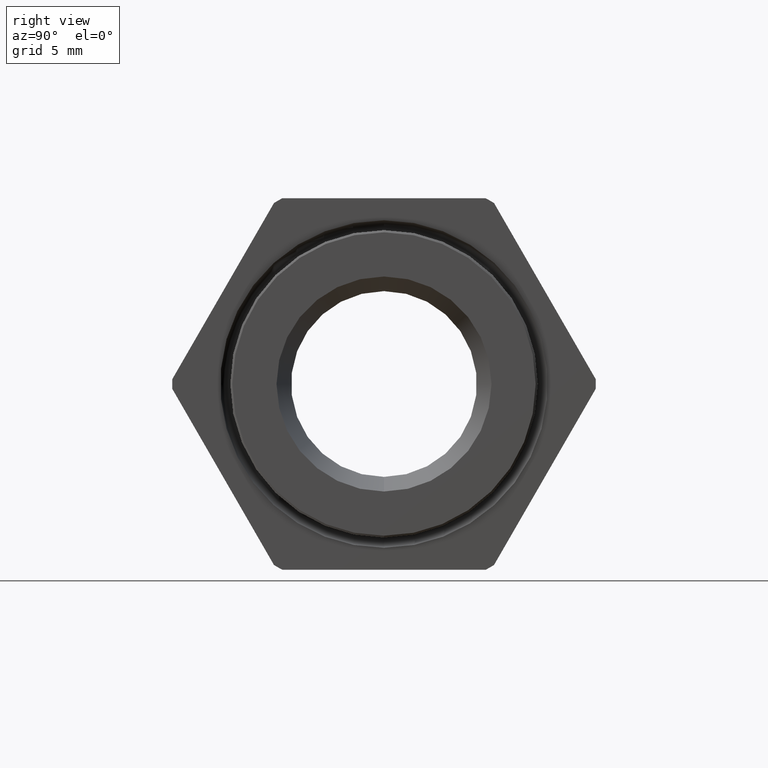
[diagram: clean part render]
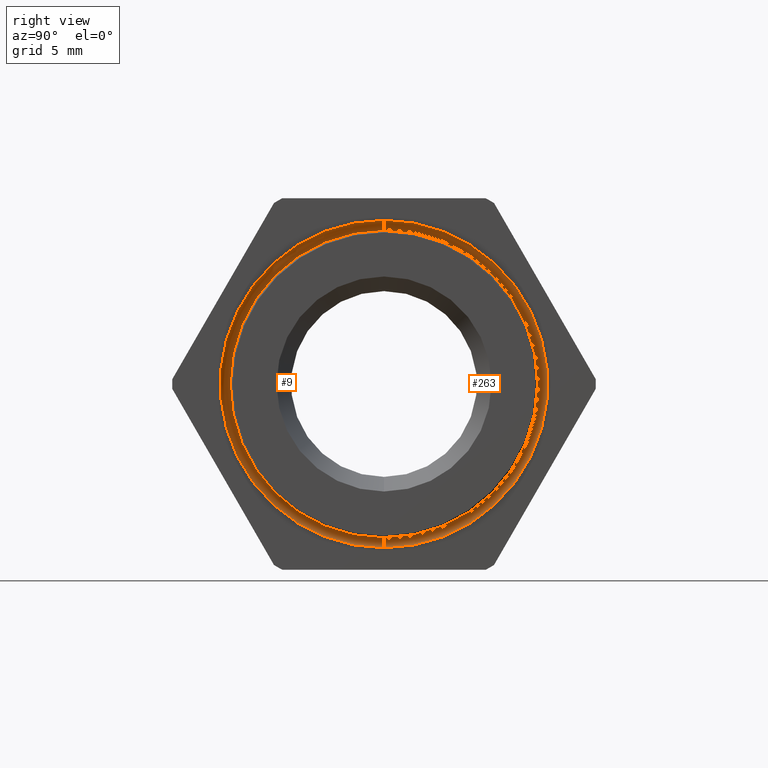
[diagram: same view with one multi-face feature highlighted, each face labeled with its STEP entity id]
A machine part, right view. The highlighted faces form ONE feature: a constant-radius fillet chain: 2 tangent blend faces with common blend radius 0.508 mm. The faces share edges in the B-rep.
Their STEP definitions:
[1] entity #9 (Torus):
#2 = ORIENTED_EDGE ( 'NONE', *, *, #11, .T. ) ;
#3 = EDGE_LOOP ( 'NONE', ( #2, #31, #29, #27 ) ) ;
#5 = VERTEX_POINT ( 'NONE', #1126 ) ;
#9 = ADVANCED_FACE ( 'NONE', ( #1109 ), #1108, .F. ) ;
#11 = EDGE_CURVE ( 'NONE', #12, #5, #1162, .T. ) ;
#12 = VERTEX_POINT ( 'NONE', #1157 ) ;
#18 = VERTEX_POINT ( 'NONE', #1150 ) ;
#20 = EDGE_CURVE ( 'NONE', #265, #18, #1149, .T. ) ;
#27 = ORIENTED_EDGE ( 'NONE', *, *, #28, .F. ) ;
#28 = EDGE_CURVE ( 'NONE', #12, #265, #1196, .T. ) ;
#29 = ORIENTED_EDGE ( 'NONE', *, *, #20, .F. ) ;
#31 = ORIENTED_EDGE ( 'NONE', *, *, #32, .T. ) ;
#32 = EDGE_CURVE ( 'NONE', #5, #18, #1187, .T. ) ;
#265 = VERTEX_POINT ( 'NONE', #1450 ) ;
#1103 = DIRECTION ( 'NONE',  ( 0.0000000000000000000, 0.0000000000000000000, 1.000000000000000000 ) ) ;
#1104 = DIRECTION ( 'NONE',  ( -1.000000000000000000, 0.0000000000000000000, 0.0000000000000000000 ) ) ;
#1105 = CARTESIAN_POINT ( 'NONE',  ( 0.3555097499999999600, 0.0000000000000000000, 0.0000000000000000000 ) ) ;
#1106 = AXIS2_PLACEMENT_3D ( 'NONE', #1105, #1104, #1103 ) ;
#1108 = TOROIDAL_SURFACE ( 'NONE', #1106, 0.3950000000000000200, 0.01999999999999999700 ) ;
#1109 = FACE_OUTER_BOUND ( 'NONE', #3, .T. ) ;
#1126 = CARTESIAN_POINT ( 'NONE',  ( 0.3555097499999999600, 4.592425496802574200E-017, -0.3750000000000000600 ) ) ;
#1145 = DIRECTION ( 'NONE',  ( 0.0000000000000000000, 0.0000000000000000000, -1.000000000000000000 ) ) ;
#1146 = DIRECTION ( 'NONE',  ( 0.0000000000000000000, -1.000000000000000000, 0.0000000000000000000 ) ) ;
#1147 = CARTESIAN_POINT ( 'NONE',  ( 0.3555097499999999600, 0.0000000000000000000, 0.3950000000000000200 ) ) ;
#1148 = AXIS2_PLACEMENT_3D ( 'NONE', #1147, #1146, #1145 ) ;
#1149 = CIRCLE ( 'NONE', #1148, 0.01999999999999999000 ) ;
#1150 = CARTESIAN_POINT ( 'NONE',  ( 0.3555097499999999600, 0.0000000000000000000, 0.3750000000000000600 ) ) ;
#1157 = CARTESIAN_POINT ( 'NONE',  ( 0.3499999999999999800, 5.072806590078969600E-017, -0.4142260930752324500 ) ) ;
#1158 = DIRECTION ( 'NONE',  ( 0.0000000000000000000, -1.224646799147354900E-016, 1.000000000000000000 ) ) ;
#1159 = DIRECTION ( 'NONE',  ( 0.0000000000000000000, 1.000000000000000000, 1.224646799147353200E-016 ) ) ;
#1160 = CARTESIAN_POINT ( 'NONE',  ( 0.3555097499999999600, 4.837354856632045600E-017, -0.3950000000000000200 ) ) ;
#1161 = AXIS2_PLACEMENT_3D ( 'NONE', #1160, #1159, #1158 ) ;
#1162 = CIRCLE ( 'NONE', #1161, 0.01999999999999999000 ) ;
#1183 = DIRECTION ( 'NONE',  ( 0.0000000000000000000, 0.0000000000000000000, 1.000000000000000000 ) ) ;
#1184 = DIRECTION ( 'NONE',  ( -1.000000000000000000, 0.0000000000000000000, 0.0000000000000000000 ) ) ;
#1185 = CARTESIAN_POINT ( 'NONE',  ( 0.3555097499999999600, 0.0000000000000000000, 0.0000000000000000000 ) ) ;
#1186 = AXIS2_PLACEMENT_3D ( 'NONE', #1185, #1184, #1183 ) ;
#1187 = CIRCLE ( 'NONE', #1186, 0.3750000000000000600 ) ;
#1192 = DIRECTION ( 'NONE',  ( 0.0000000000000000000, 0.0000000000000000000, 1.000000000000000000 ) ) ;
#1193 = DIRECTION ( 'NONE',  ( -1.000000000000000000, 0.0000000000000000000, 0.0000000000000000000 ) ) ;
#1194 = CARTESIAN_POINT ( 'NONE',  ( 0.3499999999999999800, 0.0000000000000000000, 0.0000000000000000000 ) ) ;
#1195 = AXIS2_PLACEMENT_3D ( 'NONE', #1194, #1193, #1192 ) ;
#1196 = CIRCLE ( 'NONE', #1195, 0.4142260930752324500 ) ;
#1450 = CARTESIAN_POINT ( 'NONE',  ( 0.3499999999999999800, 0.0000000000000000000, 0.4142260930752324500 ) ) ;
[2] entity #263 (Torus):
#4 = ORIENTED_EDGE ( 'NONE', *, *, #20, .T. ) ;
#5 = VERTEX_POINT ( 'NONE', #1126 ) ;
#10 = EDGE_CURVE ( 'NONE', #265, #12, #1102, .T. ) ;
#11 = EDGE_CURVE ( 'NONE', #12, #5, #1162, .T. ) ;
#12 = VERTEX_POINT ( 'NONE', #1157 ) ;
#13 = ORIENTED_EDGE ( 'NONE', *, *, #10, .F. ) ;
#14 = ORIENTED_EDGE ( 'NONE', *, *, #11, .F. ) ;
#17 = EDGE_CURVE ( 'NONE', #18, #5, #1155, .T. ) ;
#18 = VERTEX_POINT ( 'NONE', #1150 ) ;
#19 = ORIENTED_EDGE ( 'NONE', *, *, #17, .T. ) ;
#20 = EDGE_CURVE ( 'NONE', #265, #18, #1149, .T. ) ;
#263 = ADVANCED_FACE ( 'NONE', ( #1456 ), #1455, .F. ) ;
#264 = EDGE_LOOP ( 'NONE', ( #4, #19, #14, #13 ) ) ;
#265 = VERTEX_POINT ( 'NONE', #1450 ) ;
#1101 = AXIS2_PLACEMENT_3D ( 'NONE', #1107, #1164, #1163 ) ;
#1102 = CIRCLE ( 'NONE', #1101, 0.4142260930752324500 ) ;
#1107 = CARTESIAN_POINT ( 'NONE',  ( 0.3499999999999999800, 0.0000000000000000000, 0.0000000000000000000 ) ) ;
#1126 = CARTESIAN_POINT ( 'NONE',  ( 0.3555097499999999600, 4.592425496802574200E-017, -0.3750000000000000600 ) ) ;
#1145 = DIRECTION ( 'NONE',  ( 0.0000000000000000000, 0.0000000000000000000, -1.000000000000000000 ) ) ;
#1146 = DIRECTION ( 'NONE',  ( 0.0000000000000000000, -1.000000000000000000, 0.0000000000000000000 ) ) ;
#1147 = CARTESIAN_POINT ( 'NONE',  ( 0.3555097499999999600, 0.0000000000000000000, 0.3950000000000000200 ) ) ;
#1148 = AXIS2_PLACEMENT_3D ( 'NONE', #1147, #1146, #1145 ) ;
#1149 = CIRCLE ( 'NONE', #1148, 0.01999999999999999000 ) ;
#1150 = CARTESIAN_POINT ( 'NONE',  ( 0.3555097499999999600, 0.0000000000000000000, 0.3750000000000000600 ) ) ;
#1151 = DIRECTION ( 'NONE',  ( 0.0000000000000000000, 0.0000000000000000000, 1.000000000000000000 ) ) ;
#1152 = DIRECTION ( 'NONE',  ( -1.000000000000000000, 0.0000000000000000000, 0.0000000000000000000 ) ) ;
#1153 = CARTESIAN_POINT ( 'NONE',  ( 0.3555097499999999600, 0.0000000000000000000, 0.0000000000000000000 ) ) ;
#1154 = AXIS2_PLACEMENT_3D ( 'NONE', #1153, #1152, #1151 ) ;
#1155 = CIRCLE ( 'NONE', #1154, 0.3750000000000000600 ) ;
#1157 = CARTESIAN_POINT ( 'NONE',  ( 0.3499999999999999800, 5.072806590078969600E-017, -0.4142260930752324500 ) ) ;
#1158 = DIRECTION ( 'NONE',  ( 0.0000000000000000000, -1.224646799147354900E-016, 1.000000000000000000 ) ) ;
#1159 = DIRECTION ( 'NONE',  ( 0.0000000000000000000, 1.000000000000000000, 1.224646799147353200E-016 ) ) ;
#1160 = CARTESIAN_POINT ( 'NONE',  ( 0.3555097499999999600, 4.837354856632045600E-017, -0.3950000000000000200 ) ) ;
#1161 = AXIS2_PLACEMENT_3D ( 'NONE', #1160, #1159, #1158 ) ;
#1162 = CIRCLE ( 'NONE', #1161, 0.01999999999999999000 ) ;
#1163 = DIRECTION ( 'NONE',  ( 0.0000000000000000000, 0.0000000000000000000, 1.000000000000000000 ) ) ;
#1164 = DIRECTION ( 'NONE',  ( -1.000000000000000000, 0.0000000000000000000, 0.0000000000000000000 ) ) ;
#1450 = CARTESIAN_POINT ( 'NONE',  ( 0.3499999999999999800, 0.0000000000000000000, 0.4142260930752324500 ) ) ;
#1451 = DIRECTION ( 'NONE',  ( 0.0000000000000000000, 0.0000000000000000000, 1.000000000000000000 ) ) ;
#1452 = DIRECTION ( 'NONE',  ( -1.000000000000000000, 0.0000000000000000000, 0.0000000000000000000 ) ) ;
#1453 = CARTESIAN_POINT ( 'NONE',  ( 0.3555097499999999600, 0.0000000000000000000, 0.0000000000000000000 ) ) ;
#1454 = AXIS2_PLACEMENT_3D ( 'NONE', #1453, #1452, #1451 ) ;
#1455 = TOROIDAL_SURFACE ( 'NONE', #1454, 0.3950000000000000200, 0.01999999999999999700 ) ;
#1456 = FACE_OUTER_BOUND ( 'NONE', #264, .T. ) ;